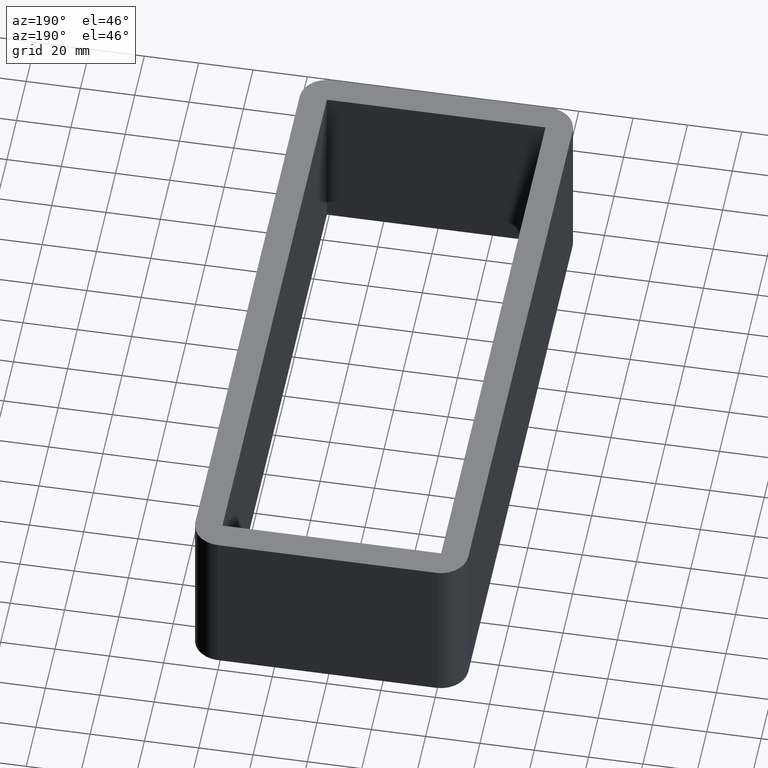
[diagram: clean part render]
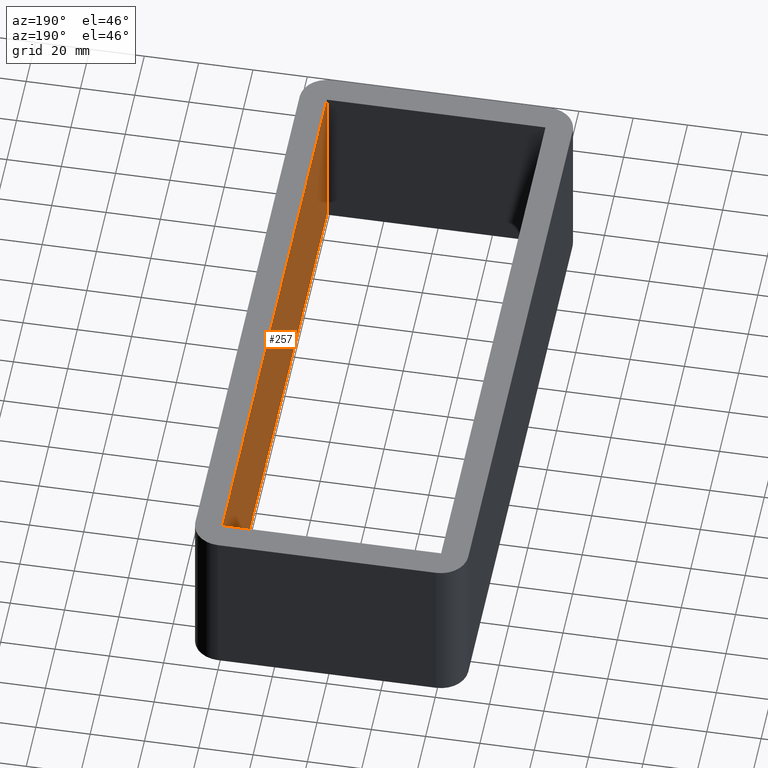
[diagram: same view with one face highlighted and labeled with its STEP entity id]
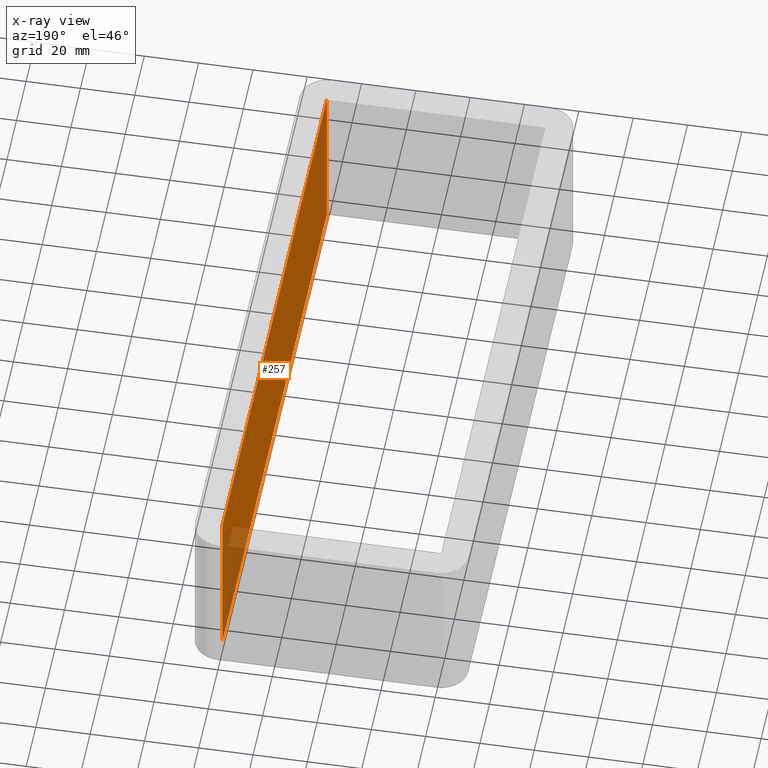
[diagram: x-ray of the same camera — body ghosted, the highlighted face saturated]
A machine part, auxiliary view. The second image highlights one B-rep face of the part: STEP entity #257.
The next image is the same camera in x-ray: the body ghosted, the highlighted face saturated — about 8% of this face is hidden behind the body in this view.
In plain terms, the highlighted planar face has unit normal (1, 0, 0).
Its self-contained STEP definition (entity closure, byte-faithful):
#29=FACE_OUTER_BOUND('',#43,.T.);
#43=EDGE_LOOP('',(#175,#176,#177,#178));
#59=LINE('',#391,#87);
#60=LINE('',#393,#88);
#61=LINE('',#395,#89);
#62=LINE('',#396,#90);
#87=VECTOR('',#317,10.);
#88=VECTOR('',#318,10.);
#89=VECTOR('',#319,10.);
#90=VECTOR('',#320,10.);
#115=VERTEX_POINT('',#389);
#116=VERTEX_POINT('',#390);
#117=VERTEX_POINT('',#392);
#118=VERTEX_POINT('',#394);
#139=EDGE_CURVE('',#115,#116,#59,.T.);
#140=EDGE_CURVE('',#117,#115,#60,.T.);
#141=EDGE_CURVE('',#118,#117,#61,.T.);
#142=EDGE_CURVE('',#118,#116,#62,.T.);
#175=ORIENTED_EDGE('',*,*,#139,.F.);
#176=ORIENTED_EDGE('',*,*,#140,.F.);
#177=ORIENTED_EDGE('',*,*,#141,.F.);
#178=ORIENTED_EDGE('',*,*,#142,.T.);
#247=PLANE('',#291);
#257=ADVANCED_FACE('',(#29),#247,.F.);
#291=AXIS2_PLACEMENT_3D('',#388,#315,#316);
#315=DIRECTION('center_axis',(1.,8.14842586880849E-17,0.));
#316=DIRECTION('ref_axis',(8.14842586880849E-17,-1.,0.));
#317=DIRECTION('',(-8.14842586880849E-17,1.,0.));
#318=DIRECTION('',(0.,0.,-1.));
#319=DIRECTION('',(8.14842586880849E-17,-1.,0.));
#320=DIRECTION('',(0.,0.,-1.));
#388=CARTESIAN_POINT('Origin',(40.2500000000036,108.99999999999,0.));
#389=CARTESIAN_POINT('',(40.2500000000036,-109.00000000001,-60.));
#390=CARTESIAN_POINT('',(40.2500000000036,108.99999999999,-60.));
#391=CARTESIAN_POINT('',(40.2500000000036,54.4999999999948,-60.));
#392=CARTESIAN_POINT('',(40.2500000000036,-109.00000000001,0.));
#393=CARTESIAN_POINT('',(40.2500000000036,-109.00000000001,0.));
#394=CARTESIAN_POINT('',(40.2500000000036,108.99999999999,0.));
#395=CARTESIAN_POINT('',(40.2500000000036,54.4999999999948,0.));
#396=CARTESIAN_POINT('',(40.2500000000036,108.99999999999,0.));